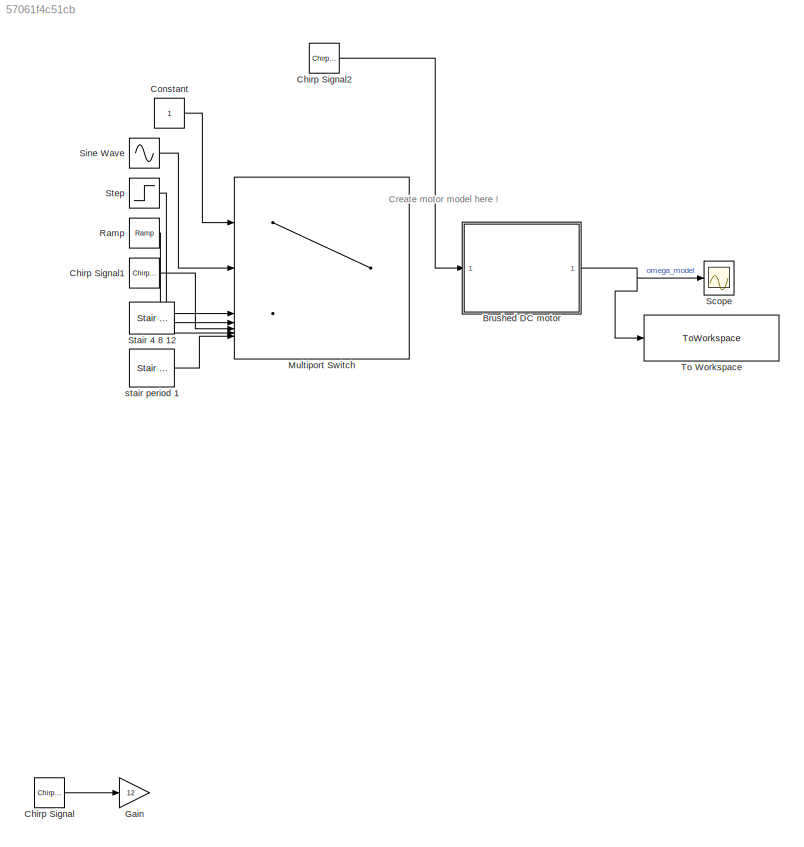
MODEL slx_57061f4c51cb
KIND model
CONFIG AbsTol = auto
CONFIG EnableMultiTasking = off
CONFIG FixedStep = 0.001
CONFIG MaxStep = auto
CONFIG MinStep = auto
CONFIG RelTol = 1e-3
CONFIG SampleTimeConstraint = Unconstrained
CONFIG SolverName = FixedStepAuto
CONFIG StartTime = 0.0
CONFIG StopTime = 100
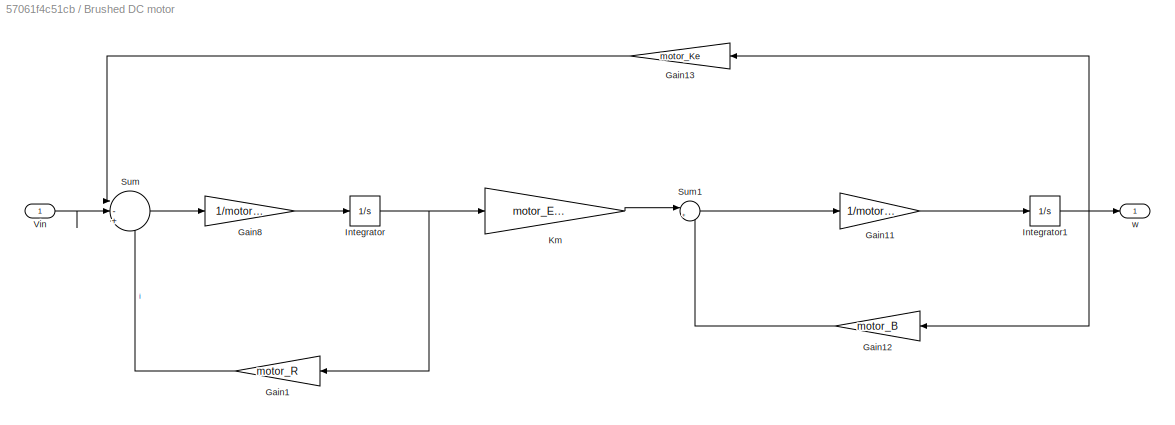
BLOCK [SubSystem] Brushed DC motor
BLOCK [Gain] Brushed DC motor/Gain1
  Gain = motor_R
  NameLocation = top
BLOCK [Gain] Brushed DC motor/Gain11
  Gain = 1/motor_J
BLOCK [Gain] Brushed DC motor/Gain12
  Gain = motor_B
  NameLocation = top
BLOCK [Gain] Brushed DC motor/Gain13
  Gain = motor_Ke
  NameLocation = top
BLOCK [Gain] Brushed DC motor/Gain8
  Gain = 1/motor_L
BLOCK [Integrator] Brushed DC motor/Integrator
BLOCK [Integrator] Brushed DC motor/Integrator1
BLOCK [Gain] Brushed DC motor/Km
  Gain = motor_Eff*motor_Ke
BLOCK [Sum] Brushed DC motor/Sum
  Inputs = |-+-
BLOCK [Sum] Brushed DC motor/Sum1
  Inputs = |+-
BLOCK [Inport] Brushed DC motor/Vin
BLOCK [Outport] Brushed DC motor/w
BLOCK [Reference] Chirp Signal  REF=simulink/Sources/Chirp Signal
  Commented = on
  SourceBlock = simulink/Sources/Chirp Signal
  SourceType = chirp
BLOCK [Reference] Chirp Signal1  REF=simulink/Sources/Chirp Signal
  Commented = on
  SourceBlock = simulink/Sources/Chirp Signal
  SourceType = chirp
BLOCK [Reference] Chirp Signal2  REF=simulink/Sources/Chirp Signal
  SourceBlock = simulink/Sources/Chirp Signal
  SourceType = chirp
BLOCK [Constant] Constant
  Commented = on
BLOCK [Gain] Gain
  Commented = on
  Gain = 12
BLOCK [MultiPortSwitch] Multiport Switch
  Commented = on
  InputSameDT = off
  Inputs = 6
  SaturateOnIntegerOverflow = off
BLOCK [Reference] Ramp  REF=simulink/Sources/Ramp
  Commented = on
  SourceBlock = simulink/Sources/Ramp
  SourceType = Ramp
BLOCK [Scope] Scope
  ActiveDisplayYMaximum = 259.11200055082764
  ActiveDisplayYMinimum = -255.35179432487251
  Floating = off
  GraphicalSettings = {"Style":{"BackgroundColor":[0.12941176470588237,0.12941176470588237,0.12941176470588237],"AxesColor":[0.07058823529411765,0.07058823529411765,0.07058823529411765],"LabelsColor":[0.8509803921568627,0.8509803921568627,0.8509803921568627],"PreserveColors":false,"Visible":[true],"LineStyle":["-"],"LineWidth":[1.5],"BarWidth":[0.9],"LineColor":["auto"],"LineFaceAlpha":[1],"LineEdgeAlpha":[1],"Marker":...<+2009ch>
  MultipleDisplayCache = [{"MaxYLimMag":259.11200055082764,"MaxYLimReal":259.11200055082764,"MinYLimMag":0,"MinYLimReal":-255.35179432487251,"PlotAsMagnitudePhase":false,"ShowGrid":true,"ShowLegend":false,"Title":"%<SignalLabel>","YLabel":""}]
  NumInputPorts = 1
  ScopeFrameLocation = window
  WasSavedAsWebScope = on
  WindowPosition = [680.000000,330.000000,560.000000,420.000000,]
BLOCK [Sin] Sine Wave
  Amplitude = 12
  Commented = on
  Frequency = pi
  SampleTime = 0
BLOCK [Reference] Stair 4 8 12  REF=eeStairGenerator/Stair Generator
  Commented = on
  LibrarySourceBlock = ee_sl_lib/General Control/Stair Generator
  SourceBlock = eeStairGenerator/Stair Generator
  SourceType = Stair Generator
BLOCK [Step] Step
  Commented = on
  SampleTime = 0
  Time = 9
BLOCK [ToWorkspace] To Workspace
  Commented = on
  FixptAsFi = on
  MaxDataPoints = inf
  SampleTime = -1
  SaveFormat = Timeseries
  VariableName = simout
BLOCK [Reference] stair period 1  REF=eeStairGenerator/Stair Generator
  Commented = on
  LibrarySourceBlock = ee_sl_lib/General Control/Stair Generator
  SourceBlock = eeStairGenerator/Stair Generator
  SourceType = Stair Generator
ANNOTATION (root): Create motor model here !
LINE Brushed DC motor/Gain11:1 -> Brushed DC motor/Integrator1:1
LINE Brushed DC motor/Gain12:1 -> Brushed DC motor/Sum1:2
LINE Brushed DC motor/Gain13:1 -> Brushed DC motor/Sum:1
LINE Brushed DC motor/Gain1:1 -> Brushed DC motor/Sum:3
LINE Brushed DC motor/Gain8:1 -> Brushed DC motor/Integrator:1
NET Brushed DC motor/Integrator1:1 -> Brushed DC motor/Gain12:1, Brushed DC motor/Gain13:1, Brushed DC motor/w:1
NET Brushed DC motor/Integrator:1 -> Brushed DC motor/Gain1:1, Brushed DC motor/Km:1
LINE Brushed DC motor/Km:1 -> Brushed DC motor/Sum1:1
LINE Brushed DC motor/Sum1:1 -> Brushed DC motor/Gain11:1
LINE Brushed DC motor/Sum:1 -> Brushed DC motor/Gain8:1
LINE Brushed DC motor/Vin:1 -> Brushed DC motor/Sum:2
NET Brushed DC motor:1 -> Scope:1, To Workspace:1
LINE Chirp Signal1:1 -> Multiport Switch:5
LINE Chirp Signal2:1 -> Brushed DC motor:1
LINE Chirp Signal:1 -> Gain:1
LINE Constant:1 -> Multiport Switch:1
LINE Ramp:1 -> Multiport Switch:4
LINE Sine Wave:1 -> Multiport Switch:2
LINE Stair 4 8 12:1 -> Multiport Switch:6
LINE Step:1 -> Multiport Switch:3
LINE stair period 1:1 -> Multiport Switch:7
note: NET lines group one-source signal fan-out (src -> all destinations, sorted); 1:1 wires keep LINE
